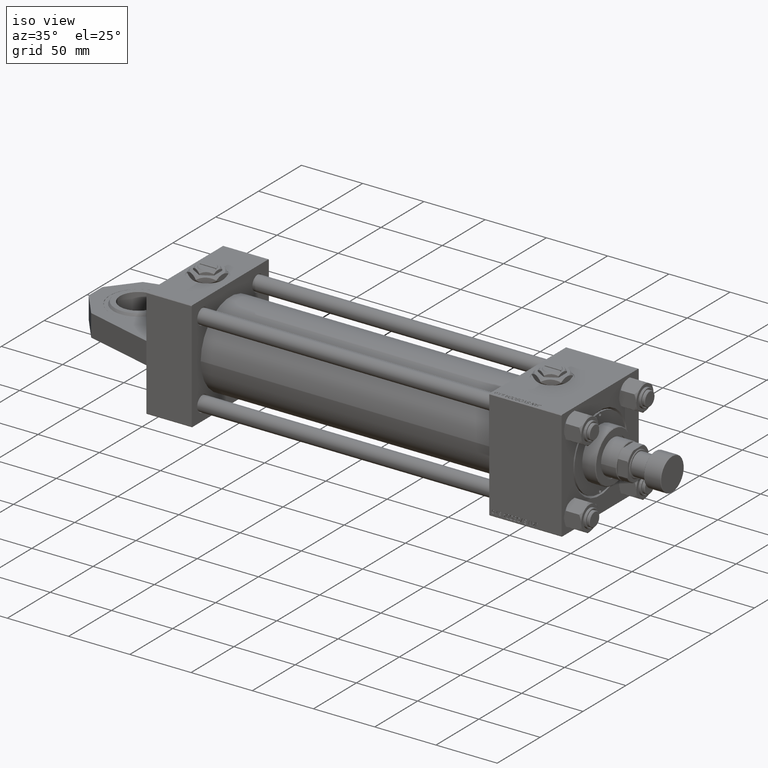
[diagram: clean part render]
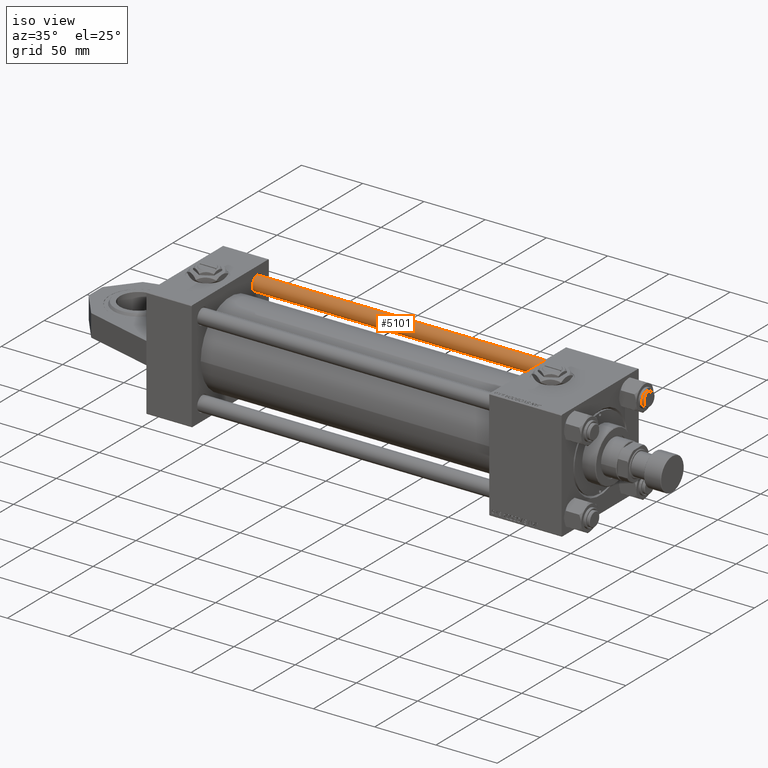
[diagram: same view with one face highlighted and labeled with its STEP entity id]
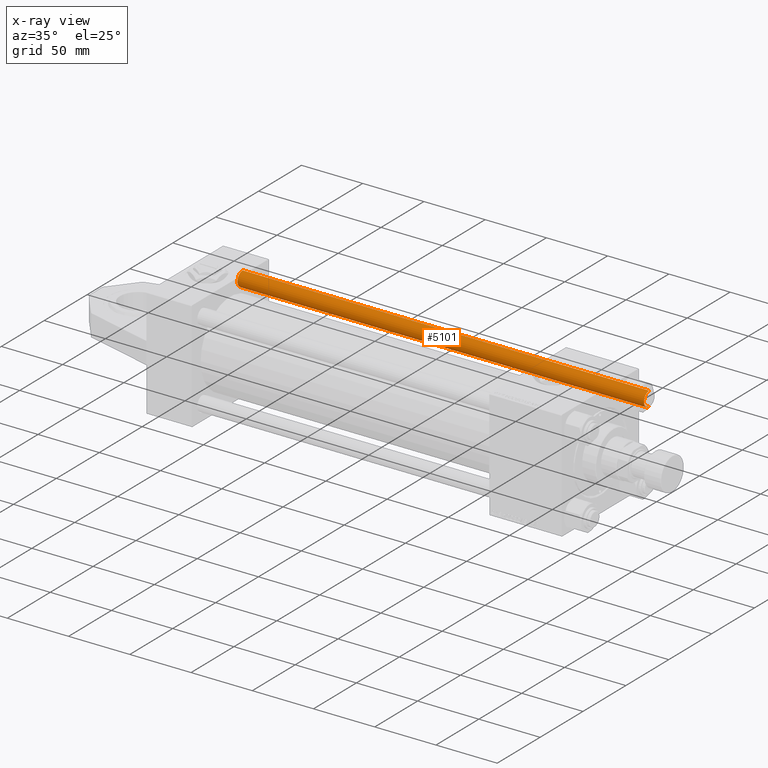
[diagram: x-ray of the same camera — body ghosted, the highlighted face saturated]
A machine part, iso view. The second image highlights one B-rep face of the part: STEP entity #5101.
The next image is the same camera in x-ray: the body ghosted, the highlighted face saturated — about 0% of this face is hidden behind the body in this view.
In plain terms, the highlighted cylindrical surface (edge-blend (fillet) strip) has radius 6 mm, axis along (1, 0, 0).
Its self-contained STEP definition (entity closure, byte-faithful):
#542 = EDGE_CURVE ( 'NONE', #41616, #42662, #6936, .T. ) ;
#2514 = EDGE_CURVE ( 'NONE', #8338, #42662, #31600, .T. ) ;
#4531 = CARTESIAN_POINT ( 'NONE',  ( 0.000000000000000000, 0.000000000000000000, 332.5000000000001137 ) ) ;
#5101 = ADVANCED_FACE ( 'NONE', ( #29216 ), #45736, .T. ) ;
#6936 = CIRCLE ( 'NONE', #28223, 6.000000000000000888 ) ;
#7430 = EDGE_LOOP ( 'NONE', ( #8097, #15683, #34054, #32430 ) ) ;
#8097 = ORIENTED_EDGE ( 'NONE', *, *, #2514, .F. ) ;
#8338 = VERTEX_POINT ( 'NONE', #28694 ) ;
#8688 = AXIS2_PLACEMENT_3D ( 'NONE', #45474, #8980, #9239 ) ;
#8980 = DIRECTION ( 'NONE',  ( -0.000000000000000000, -0.000000000000000000, -1.000000000000000000 ) ) ;
#9239 = DIRECTION ( 'NONE',  ( -1.000000000000000000, 0.000000000000000000, 0.000000000000000000 ) ) ;
#9353 = CARTESIAN_POINT ( 'NONE',  ( -6.000000000000000888, 0.000000000000000000, 333.0000000000000000 ) ) ;
#12522 = DIRECTION ( 'NONE',  ( 0.000000000000000000, 0.000000000000000000, -1.000000000000000000 ) ) ;
#15683 = ORIENTED_EDGE ( 'NONE', *, *, #25086, .T. ) ;
#15883 = DIRECTION ( 'NONE',  ( -0.000000000000000000, -0.000000000000000000, -1.000000000000000000 ) ) ;
#18236 = DIRECTION ( 'NONE',  ( -0.000000000000000000, -0.000000000000000000, 1.000000000000000000 ) ) ;
#19707 = VERTEX_POINT ( 'NONE', #20670 ) ;
#20670 = CARTESIAN_POINT ( 'NONE',  ( -6.000000000000000888, 0.000000000000000000, 332.5000000000001137 ) ) ;
#21012 = DIRECTION ( 'NONE',  ( 1.000000000000000000, 0.000000000000000000, 0.000000000000000000 ) ) ;
#22235 = CARTESIAN_POINT ( 'NONE',  ( 0.000000000000000000, 0.000000000000000000, 0.5000000000000004441 ) ) ;
#25086 = EDGE_CURVE ( 'NONE', #8338, #19707, #37229, .T. ) ;
#25583 = VECTOR ( 'NONE', #33581, 1000.000000000000000 ) ;
#26579 = VECTOR ( 'NONE', #15883, 1000.000000000000000 ) ;
#28130 = CARTESIAN_POINT ( 'NONE',  ( 6.000000000000000888, 7.347880794884120722E-16, 333.0000000000000000 ) ) ;
#28223 = AXIS2_PLACEMENT_3D ( 'NONE', #22235, #18236, #50759 ) ;
#28694 = CARTESIAN_POINT ( 'NONE',  ( 6.000000000000000888, 7.347880794884120722E-16, 332.5000000000001137 ) ) ;
#29216 = FACE_OUTER_BOUND ( 'NONE', #7430, .T. ) ;
#31600 = LINE ( 'NONE', #28130, #26579 ) ;
#32430 = ORIENTED_EDGE ( 'NONE', *, *, #542, .T. ) ;
#33581 = DIRECTION ( 'NONE',  ( -0.000000000000000000, -0.000000000000000000, -1.000000000000000000 ) ) ;
#34054 = ORIENTED_EDGE ( 'NONE', *, *, #37125, .T. ) ;
#37125 = EDGE_CURVE ( 'NONE', #19707, #41616, #41576, .T. ) ;
#37229 = CIRCLE ( 'NONE', #52541, 6.000000000000000888 ) ;
#41576 = LINE ( 'NONE', #9353, #25583 ) ;
#41616 = VERTEX_POINT ( 'NONE', #43702 ) ;
#42662 = VERTEX_POINT ( 'NONE', #48490 ) ;
#43702 = CARTESIAN_POINT ( 'NONE',  ( -6.000000000000000888, 0.000000000000000000, 0.5000000000000004441 ) ) ;
#45474 = CARTESIAN_POINT ( 'NONE',  ( 0.000000000000000000, 0.000000000000000000, 333.0000000000000000 ) ) ;
#45736 = CYLINDRICAL_SURFACE ( 'NONE', #8688, 6.000000000000000888 ) ;
#48490 = CARTESIAN_POINT ( 'NONE',  ( 6.000000000000000888, 7.347880794884120722E-16, 0.5000000000000004441 ) ) ;
#50759 = DIRECTION ( 'NONE',  ( 1.000000000000000000, 0.000000000000000000, 0.000000000000000000 ) ) ;
#52541 = AXIS2_PLACEMENT_3D ( 'NONE', #4531, #12522, #21012 ) ;